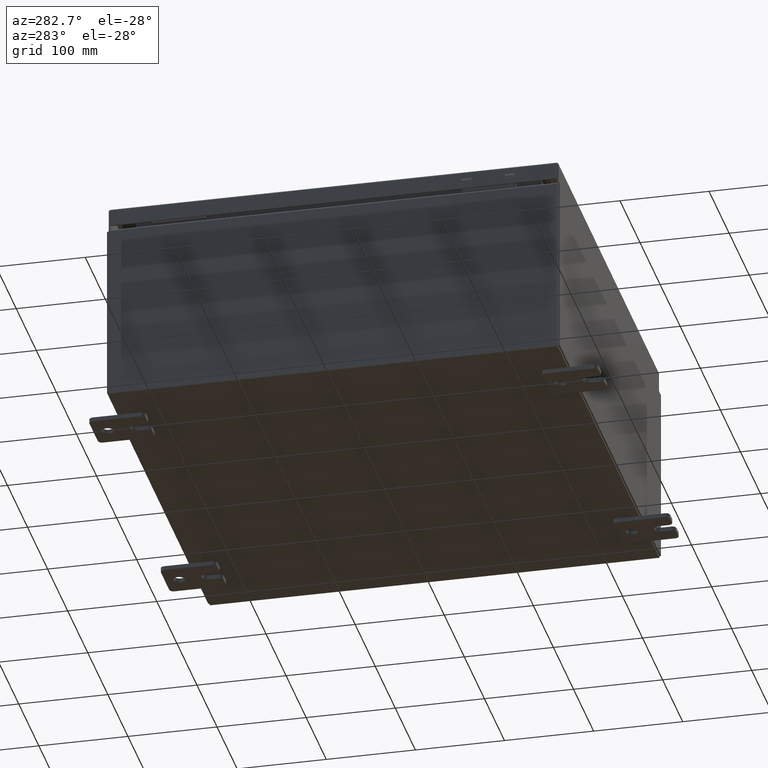
[diagram: clean part render]
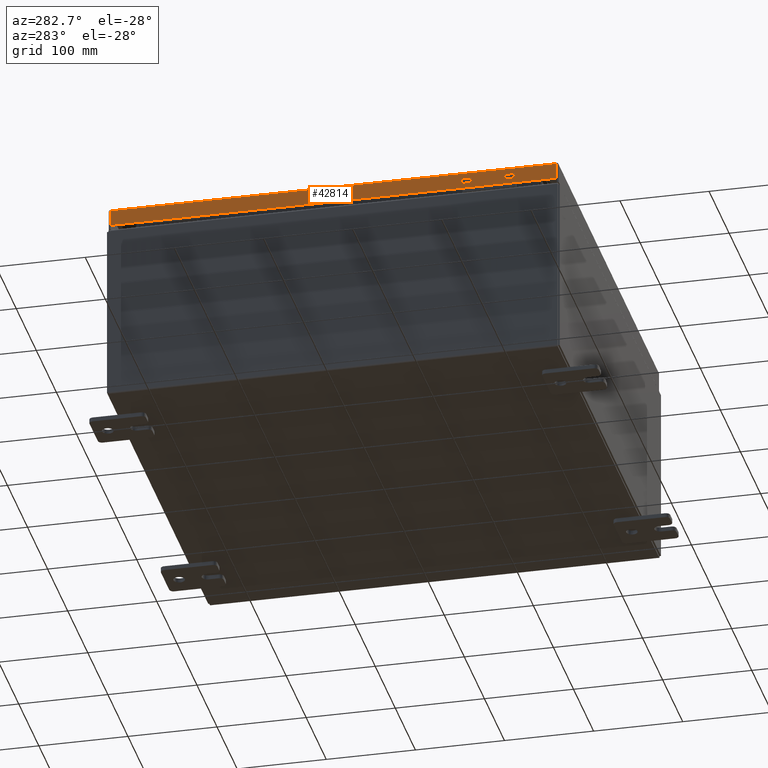
[diagram: same view with one face highlighted and labeled with its STEP entity id]
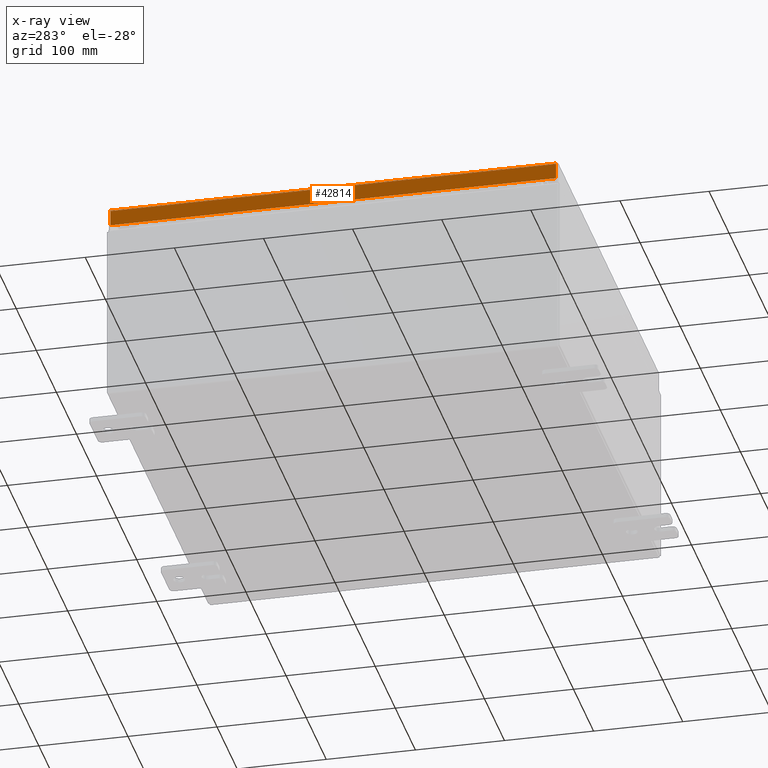
[diagram: x-ray of the same camera — body ghosted, the highlighted face saturated]
A machine part, auxiliary view. The second image highlights one B-rep face of the part: STEP entity #42814.
The next image is the same camera in x-ray: the body ghosted, the highlighted face saturated — about 0% of this face is hidden behind the body in this view.
In plain terms, the highlighted planar face has unit normal (1, 0, -0).
Its self-contained STEP definition (entity closure, byte-faithful):
#139 = LINE ( 'NONE', #2159, #49313 ) ;
#716 = CARTESIAN_POINT ( 'NONE',  ( -9.937500000000005300, 9.848657864376271200, -0.7949999999999973800 ) ) ;
#2159 = CARTESIAN_POINT ( 'NONE',  ( -9.937500000000000000, 9.848657864376265900, 1.289432253009532300E-013 ) ) ;
#2262 = CARTESIAN_POINT ( 'NONE',  ( -9.937500000000000000, -9.848657864376273000, -0.08770000000000026400 ) ) ;
#3108 = ORIENTED_EDGE ( 'NONE', *, *, #41085, .F. ) ;
#7370 = DIRECTION ( 'NONE',  ( 1.000000000000000000, 1.099611771034679500E-016, -6.068244883885633100E-015 ) ) ;
#13296 = VERTEX_POINT ( 'NONE', #33043 ) ;
#15311 = VERTEX_POINT ( 'NONE', #2262 ) ;
#23687 = LINE ( 'NONE', #31235, #35243 ) ;
#23711 = EDGE_LOOP ( 'NONE', ( #54922, #29698, #38745, #3108 ) ) ;
#24737 = FACE_OUTER_BOUND ( 'NONE', #23711, .T. ) ;
#26924 = CARTESIAN_POINT ( 'NONE',  ( -9.937500000000000000, -1.092739197465705300E-015, 6.010065586061379300E-014 ) ) ;
#27066 = DIRECTION ( 'NONE',  ( -1.099611771034672100E-016, 1.000000000000000000, 1.237063242414006300E-016 ) ) ;
#29698 = ORIENTED_EDGE ( 'NONE', *, *, #56584, .T. ) ;
#30638 = VERTEX_POINT ( 'NONE', #716 ) ;
#31235 = CARTESIAN_POINT ( 'NONE',  ( -9.937500000000000000, -9.937500000000001800, -0.08770000000000026400 ) ) ;
#32052 = DIRECTION ( 'NONE',  ( -6.068244883885633100E-015, 6.982962677686265900E-015, -1.000000000000000000 ) ) ;
#32988 = EDGE_CURVE ( 'NONE', #13296, #15311, #23687, .T. ) ;
#33043 = CARTESIAN_POINT ( 'NONE',  ( -9.937500000000001800, 9.848657864376269400, -0.08770000000000026400 ) ) ;
#35243 = VECTOR ( 'NONE', #36177, 39.37007874015748100 ) ;
#36177 = DIRECTION ( 'NONE',  ( 1.099611771034679600E-016, -1.000000000000000000, -4.554220009055657300E-045 ) ) ;
#38745 = ORIENTED_EDGE ( 'NONE', *, *, #48905, .F. ) ;
#41085 = EDGE_CURVE ( 'NONE', #15311, #52047, #47081, .T. ) ;
#41666 = DIRECTION ( 'NONE',  ( -6.068244883885633100E-015, 0.0000000000000000000, -1.000000000000000000 ) ) ;
#42814 = ADVANCED_FACE ( 'NONE', ( #24737 ), #61136, .F. ) ;
#43519 = VECTOR ( 'NONE', #27066, 39.37007874015748100 ) ;
#45539 = VECTOR ( 'NONE', #53693, 39.37007874015748100 ) ;
#45705 = CARTESIAN_POINT ( 'NONE',  ( -9.937500000000003600, -9.848657864376265900, -0.7949999999999996000 ) ) ;
#46569 = CARTESIAN_POINT ( 'NONE',  ( -9.937500000000003600, -9.937500000000001800, -0.7949999999999996000 ) ) ;
#47081 = LINE ( 'NONE', #63333, #45539 ) ;
#48905 = EDGE_CURVE ( 'NONE', #52047, #30638, #56456, .T. ) ;
#49313 = VECTOR ( 'NONE', #32052, 39.37007874015748100 ) ;
#52047 = VERTEX_POINT ( 'NONE', #45705 ) ;
#53693 = DIRECTION ( 'NONE',  ( -6.068244883885633100E-015, 6.982962677686265900E-015, -1.000000000000000000 ) ) ;
#54922 = ORIENTED_EDGE ( 'NONE', *, *, #32988, .F. ) ;
#56456 = LINE ( 'NONE', #46569, #43519 ) ;
#56584 = EDGE_CURVE ( 'NONE', #13296, #30638, #139, .T. ) ;
#61136 = PLANE ( 'NONE',  #62070 ) ;
#62070 = AXIS2_PLACEMENT_3D ( 'NONE', #26924, #7370, #41666 ) ;
#63333 = CARTESIAN_POINT ( 'NONE',  ( -9.937500000000000000, -9.848657864376271200, -0.07469999999999907300 ) ) ;